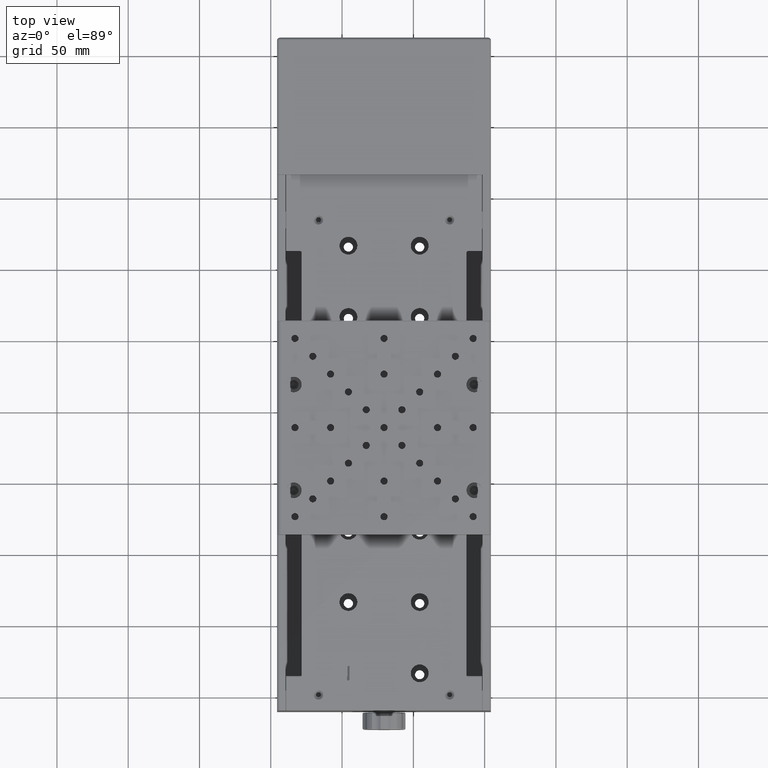
[diagram: clean part render]
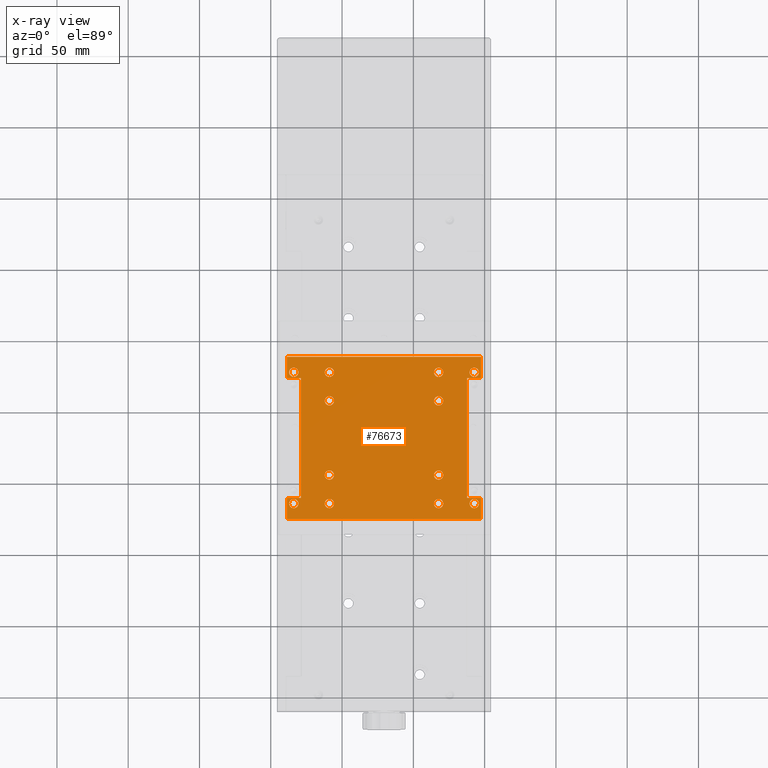
[diagram: x-ray — body ghosted, one internal face saturated and labeled with its STEP entity id]
A machine part, top view, then the same camera in x-ray: the body is ghosted and one INTERNAL B-rep face — a face not visible from any outside direction — is saturated and labeled: STEP entity #76673.
In plain terms, the highlighted planar face has unit normal (0, -0, 1).
Its self-contained STEP definition (entity closure, byte-faithful):
#167 = ORIENTED_EDGE ( 'NONE', *, *, #55372, .T. ) ;
#213 = VERTEX_POINT ( 'NONE', #16206 ) ;
#252 = VERTEX_POINT ( 'NONE', #23052 ) ;
#401 = CARTESIAN_POINT ( 'NONE',  ( -7.285432302880880506, 127.3629186807300187, 34.04665025355549801 ) ) ;
#531 = AXIS2_PLACEMENT_3D ( 'NONE', #10521, #58454, #8948 ) ;
#632 = FACE_BOUND ( 'NONE', #78102, .T. ) ;
#940 = VERTEX_POINT ( 'NONE', #60575 ) ;
#2062 = VERTEX_POINT ( 'NONE', #73159 ) ;
#2157 = CARTESIAN_POINT ( 'NONE',  ( -108.8854323028810001, 55.26291868073010249, 34.04665025355549801 ) ) ;
#2304 = DIRECTION ( 'NONE',  ( 0.000000000000000000, -2.758753472158164656E-17, 1.000000000000000000 ) ) ;
#2321 = CARTESIAN_POINT ( 'NONE',  ( -108.8854323028810001, 107.3629186807300044, 34.04665025355549801 ) ) ;
#2401 = EDGE_CURVE ( 'NONE', #65336, #32308, #16757, .T. ) ;
#3358 = EDGE_CURVE ( 'NONE', #76929, #69538, #41840, .T. ) ;
#3532 = EDGE_LOOP ( 'NONE', ( #24803, #51194 ) ) ;
#3933 = EDGE_CURVE ( 'NONE', #10815, #42988, #13474, .T. ) ;
#3978 = DIRECTION ( 'NONE',  ( 1.455344893050667910E-16, 1.000000000000000000, 2.758753472158164656E-17 ) ) ;
#5266 = DIRECTION ( 'NONE',  ( 0.000000000000000000, -2.758753472158164656E-17, 1.000000000000000000 ) ) ;
#5609 = CIRCLE ( 'NONE', #12022, 3.250000000000002665 ) ;
#5690 = ORIENTED_EDGE ( 'NONE', *, *, #47049, .F. ) ;
#5782 = ORIENTED_EDGE ( 'NONE', *, *, #75201, .F. ) ;
#6729 = CIRCLE ( 'NONE', #18254, 3.250000000000002665 ) ;
#6938 = EDGE_CURVE ( 'NONE', #56355, #9285, #22256, .T. ) ;
#7223 = DIRECTION ( 'NONE',  ( 1.000000000000000000, -3.885780586188049864E-16, -5.916456789157590292E-31 ) ) ;
#7253 = DIRECTION ( 'NONE',  ( 0.000000000000000000, -2.758753472158164656E-17, 1.000000000000000000 ) ) ;
#7432 = VERTEX_POINT ( 'NONE', #52752 ) ;
#8070 = ORIENTED_EDGE ( 'NONE', *, *, #25861, .F. ) ;
#8119 = DIRECTION ( 'NONE',  ( -1.000000000000000000, 0.000000000000000000, 0.000000000000000000 ) ) ;
#8162 = EDGE_CURVE ( 'NONE', #71764, #24796, #62534, .T. ) ;
#8298 = EDGE_CURVE ( 'NONE', #76227, #19019, #18805, .T. ) ;
#8705 = CARTESIAN_POINT ( 'NONE',  ( -108.8854323028810001, 35.26291868073004565, 34.04665025355549801 ) ) ;
#8820 = CARTESIAN_POINT ( 'NONE',  ( -2.485432302880834943, 138.4129186807300016, 34.04665025355549801 ) ) ;
#8938 = ORIENTED_EDGE ( 'NONE', *, *, #25370, .T. ) ;
#8948 = DIRECTION ( 'NONE',  ( -1.000000000000000000, 0.000000000000000000, 0.000000000000000000 ) ) ;
#9003 = FACE_BOUND ( 'NONE', #11049, .T. ) ;
#9192 = DIRECTION ( 'NONE',  ( -1.000000000000000000, 0.000000000000000000, 0.000000000000000000 ) ) ;
#9257 = VERTEX_POINT ( 'NONE', #64622 ) ;
#9285 = VERTEX_POINT ( 'NONE', #77106 ) ;
#9392 = FACE_BOUND ( 'NONE', #57454, .T. ) ;
#9806 = EDGE_CURVE ( 'NONE', #59726, #41888, #54941, .T. ) ;
#9887 = CIRCLE ( 'NONE', #54886, 3.250000000000002665 ) ;
#10147 = CARTESIAN_POINT ( 'NONE',  ( -138.6854323028809972, 138.2129186807302119, 34.04665025355549801 ) ) ;
#10220 = AXIS2_PLACEMENT_3D ( 'NONE', #43835, #7253, #37023 ) ;
#10236 = VERTEX_POINT ( 'NONE', #16927 ) ;
#10521 = CARTESIAN_POINT ( 'NONE',  ( -32.28543230288089916, 127.3629186807300187, 34.04665025355549801 ) ) ;
#10815 = VERTEX_POINT ( 'NONE', #20785 ) ;
#10972 = DIRECTION ( 'NONE',  ( -1.000000000000000000, 3.885780586188049864E-16, 5.916456789157590292E-31 ) ) ;
#11010 = AXIS2_PLACEMENT_3D ( 'NONE', #76204, #70174, #46009 ) ;
#11049 = EDGE_LOOP ( 'NONE', ( #33187, #63103 ) ) ;
#11208 = CARTESIAN_POINT ( 'NONE',  ( -138.6854323028809972, 123.4129186807300158, 34.04665025355549801 ) ) ;
#11642 = AXIS2_PLACEMENT_3D ( 'NONE', #47690, #29607, #23570 ) ;
#11878 = ORIENTED_EDGE ( 'NONE', *, *, #48046, .T. ) ;
#12022 = AXIS2_PLACEMENT_3D ( 'NONE', #2321, #33263, #21607 ) ;
#12156 = DIRECTION ( 'NONE',  ( -1.000000000000000000, 0.000000000000000000, 0.000000000000000000 ) ) ;
#12690 = CIRCLE ( 'NONE', #30730, 3.250000000000002665 ) ;
#13061 = FACE_BOUND ( 'NONE', #3532, .T. ) ;
#13066 = EDGE_CURVE ( 'NONE', #53208, #56555, #35850, .T. ) ;
#13474 = LINE ( 'NONE', #25577, #13529 ) ;
#13529 = VECTOR ( 'NONE', #43265, 1000.000000000000000 ) ;
#13931 = ORIENTED_EDGE ( 'NONE', *, *, #53601, .T. ) ;
#14491 = DIRECTION ( 'NONE',  ( -1.000000000000000000, 0.000000000000000000, 0.000000000000000000 ) ) ;
#14863 = VECTOR ( 'NONE', #10972, 1000.000000000000000 ) ;
#14879 = EDGE_CURVE ( 'NONE', #69538, #76929, #71749, .T. ) ;
#14897 = EDGE_CURVE ( 'NONE', #10236, #22226, #69175, .T. ) ;
#15103 = CARTESIAN_POINT ( 'NONE',  ( -137.1354323028809858, 127.3629186807300187, 34.04665025355549801 ) ) ;
#15245 = DIRECTION ( 'NONE',  ( 2.670562739619359873E-16, 1.000000000000000000, 2.758753472158164656E-17 ) ) ;
#15387 = CARTESIAN_POINT ( 'NONE',  ( -112.1354323028810001, 107.3629186807300044, 34.04665025355549801 ) ) ;
#16206 = CARTESIAN_POINT ( 'NONE',  ( -105.6354323028810001, 127.3629186807300187, 34.04665025355549801 ) ) ;
#16414 = CARTESIAN_POINT ( 'NONE',  ( -7.285432302880880506, 127.3629186807300187, 34.04665025355549801 ) ) ;
#16428 = EDGE_CURVE ( 'NONE', #25374, #66951, #9887, .T. ) ;
#16600 = EDGE_CURVE ( 'NONE', #24796, #71764, #51018, .T. ) ;
#16757 = CIRCLE ( 'NONE', #34731, 3.250000000000002665 ) ;
#16927 = CARTESIAN_POINT ( 'NONE',  ( -29.03543230288089916, 35.26291868073010249, 34.04665025355549801 ) ) ;
#17068 = CIRCLE ( 'NONE', #64626, 3.250000000000002665 ) ;
#17307 = DIRECTION ( 'NONE',  ( -1.000000000000000000, 3.885780586188049864E-16, 5.916456789157590292E-31 ) ) ;
#17313 = DIRECTION ( 'NONE',  ( -1.000000000000000000, 3.885780586188049864E-16, 5.916456789157590292E-31 ) ) ;
#17926 = DIRECTION ( 'NONE',  ( 0.000000000000000000, -2.758753472158164656E-17, 1.000000000000000000 ) ) ;
#18028 = EDGE_CURVE ( 'NONE', #22226, #10236, #17068, .T. ) ;
#18119 = CARTESIAN_POINT ( 'NONE',  ( -108.8854323028810001, 35.26291868073004565, 34.04665025355549801 ) ) ;
#18254 = AXIS2_PLACEMENT_3D ( 'NONE', #42723, #67290, #12156 ) ;
#18805 = CIRCLE ( 'NONE', #23930, 3.250000000000000444 ) ;
#19019 = VERTEX_POINT ( 'NONE', #43969 ) ;
#19673 = CARTESIAN_POINT ( 'NONE',  ( -2.485432302880834943, 138.2129186807300130, 34.04665025355549801 ) ) ;
#19921 = VERTEX_POINT ( 'NONE', #25616 ) ;
#20009 = DIRECTION ( 'NONE',  ( 0.000000000000000000, -2.758753472158164656E-17, 1.000000000000000000 ) ) ;
#20239 = AXIS2_PLACEMENT_3D ( 'NONE', #36738, #71768, #66541 ) ;
#20314 = CARTESIAN_POINT ( 'NONE',  ( -130.6354323028809858, 127.3629186807300187, 34.04665025355549801 ) ) ;
#20330 = EDGE_LOOP ( 'NONE', ( #52198, #45128 ) ) ;
#20568 = EDGE_CURVE ( 'NONE', #213, #9257, #34026, .T. ) ;
#20589 = CIRCLE ( 'NONE', #32129, 3.250000000000002665 ) ;
#20785 = CARTESIAN_POINT ( 'NONE',  ( -2.485432302880865141, 24.41291868072999804, 34.04665025355549801 ) ) ;
#21402 = CIRCLE ( 'NONE', #47040, 3.250000000000002665 ) ;
#21607 = DIRECTION ( 'NONE',  ( -1.000000000000000000, 0.000000000000000000, 0.000000000000000000 ) ) ;
#22226 = VERTEX_POINT ( 'NONE', #71626 ) ;
#22256 = LINE ( 'NONE', #60078, #14863 ) ;
#22771 = AXIS2_PLACEMENT_3D ( 'NONE', #18119, #20009, #62673 ) ;
#22987 = CARTESIAN_POINT ( 'NONE',  ( -12.28543230288091870, 24.21291868073010178, 34.04665025355549801 ) ) ;
#23034 = EDGE_LOOP ( 'NONE', ( #36891, #38421 ) ) ;
#23052 = CARTESIAN_POINT ( 'NONE',  ( -112.1354323028810001, 55.26291868073010249, 34.04665025355549801 ) ) ;
#23481 = ORIENTED_EDGE ( 'NONE', *, *, #6938, .T. ) ;
#23568 = EDGE_CURVE ( 'NONE', #7432, #79429, #20589, .T. ) ;
#23570 = DIRECTION ( 'NONE',  ( -1.000000000000000000, 0.000000000000000000, 0.000000000000000000 ) ) ;
#23930 = AXIS2_PLACEMENT_3D ( 'NONE', #47691, #17926, #42053 ) ;
#24048 = VERTEX_POINT ( 'NONE', #10147 ) ;
#24399 = EDGE_CURVE ( 'NONE', #32308, #65336, #52584, .T. ) ;
#24459 = DIRECTION ( 'NONE',  ( -1.000000000000000000, 0.000000000000000000, 0.000000000000000000 ) ) ;
#24509 = CARTESIAN_POINT ( 'NONE',  ( -108.8854323028810001, 55.26291868073010249, 34.04665025355549801 ) ) ;
#24796 = VERTEX_POINT ( 'NONE', #57090 ) ;
#24803 = ORIENTED_EDGE ( 'NONE', *, *, #78556, .F. ) ;
#24943 = AXIS2_PLACEMENT_3D ( 'NONE', #2157, #43967, #56871 ) ;
#25370 = EDGE_CURVE ( 'NONE', #33493, #24048, #79291, .T. ) ;
#25374 = VERTEX_POINT ( 'NONE', #36611 ) ;
#25541 = AXIS2_PLACEMENT_3D ( 'NONE', #401, #5266, #29786 ) ;
#25577 = CARTESIAN_POINT ( 'NONE',  ( -2.485432302880860256, 39.21291868073004849, 34.04665025355549801 ) ) ;
#25616 = CARTESIAN_POINT ( 'NONE',  ( -105.6354323028810001, 55.26291868073010249, 34.04665025355549801 ) ) ;
#25805 = CARTESIAN_POINT ( 'NONE',  ( -133.8854323028809858, 127.3629186807300187, 34.04665025355549801 ) ) ;
#25861 = EDGE_CURVE ( 'NONE', #2062, #74314, #12690, .T. ) ;
#25948 = FACE_BOUND ( 'NONE', #39839, .T. ) ;
#26906 = CIRCLE ( 'NONE', #10220, 3.250000000000000444 ) ;
#27793 = CARTESIAN_POINT ( 'NONE',  ( -12.28543230288089916, 39.21291868073004849, 34.04665025355549801 ) ) ;
#27835 = ORIENTED_EDGE ( 'NONE', *, *, #24399, .F. ) ;
#27865 = EDGE_CURVE ( 'NONE', #72102, #33493, #43170, .T. ) ;
#28472 = DIRECTION ( 'NONE',  ( -1.455344893050667910E-16, -1.000000000000000000, -2.758753472158164656E-17 ) ) ;
#28592 = VECTOR ( 'NONE', #3978, 1000.000000000000000 ) ;
#29519 = ORIENTED_EDGE ( 'NONE', *, *, #29922, .T. ) ;
#29599 = CARTESIAN_POINT ( 'NONE',  ( -4.035432302880875177, 127.3629186807300187, 34.04665025355549801 ) ) ;
#29607 = DIRECTION ( 'NONE',  ( 0.000000000000000000, -2.758753472158164656E-17, 1.000000000000000000 ) ) ;
#29786 = DIRECTION ( 'NONE',  ( -1.000000000000000000, 0.000000000000000000, 0.000000000000000000 ) ) ;
#29862 = CARTESIAN_POINT ( 'NONE',  ( -128.8854323028809858, 39.21291868073010534, 34.04665025355549801 ) ) ;
#29922 = EDGE_CURVE ( 'NONE', #42988, #56555, #43035, .T. ) ;
#30049 = VECTOR ( 'NONE', #39345, 1000.000000000000000 ) ;
#30584 = CARTESIAN_POINT ( 'NONE',  ( -32.28543230288089916, 35.26291868073010249, 34.04665025355549801 ) ) ;
#30730 = AXIS2_PLACEMENT_3D ( 'NONE', #69481, #2304, #61856 ) ;
#31180 = FACE_BOUND ( 'NONE', #60341, .T. ) ;
#31298 = CIRCLE ( 'NONE', #24943, 3.250000000000002665 ) ;
#31575 = EDGE_CURVE ( 'NONE', #56355, #73875, #34129, .T. ) ;
#31679 = CARTESIAN_POINT ( 'NONE',  ( -10.53543230288089916, 35.26291868073010249, 34.04665025355549801 ) ) ;
#32129 = AXIS2_PLACEMENT_3D ( 'NONE', #40816, #77054, #78264 ) ;
#32224 = CIRCLE ( 'NONE', #48937, 3.250000000000002665 ) ;
#32308 = VERTEX_POINT ( 'NONE', #20314 ) ;
#32384 = ORIENTED_EDGE ( 'NONE', *, *, #23568, .F. ) ;
#32529 = CARTESIAN_POINT ( 'NONE',  ( -138.6854323028809972, 123.4129186807300158, 34.04665025355549801 ) ) ;
#33153 = FACE_OUTER_BOUND ( 'NONE', #39297, .T. ) ;
#33187 = ORIENTED_EDGE ( 'NONE', *, *, #18028, .F. ) ;
#33263 = DIRECTION ( 'NONE',  ( 0.000000000000000000, -2.758753472158164656E-17, 1.000000000000000000 ) ) ;
#33469 = CARTESIAN_POINT ( 'NONE',  ( -146.8150681160723821, 123.4129186807300158, 34.04665025355549801 ) ) ;
#33493 = VERTEX_POINT ( 'NONE', #19673 ) ;
#33745 = CARTESIAN_POINT ( 'NONE',  ( -32.28543230288089916, 35.26291868073010249, 34.04665025355549801 ) ) ;
#34026 = CIRCLE ( 'NONE', #66152, 3.250000000000002665 ) ;
#34129 = LINE ( 'NONE', #58696, #28592 ) ;
#34170 = VECTOR ( 'NONE', #47900, 1000.000000000000000 ) ;
#34404 = CARTESIAN_POINT ( 'NONE',  ( -130.6354323028809858, 35.26291868073004565, 34.04665025355549801 ) ) ;
#34416 = VECTOR ( 'NONE', #17307, 1000.000000000000000 ) ;
#34591 = CARTESIAN_POINT ( 'NONE',  ( -2.485432302880830502, 123.4129186807300158, 34.04665025355549801 ) ) ;
#34731 = AXIS2_PLACEMENT_3D ( 'NONE', #40067, #45309, #39680 ) ;
#35150 = ORIENTED_EDGE ( 'NONE', *, *, #8298, .F. ) ;
#35162 = EDGE_CURVE ( 'NONE', #940, #61110, #45048, .T. ) ;
#35317 = VECTOR ( 'NONE', #7223, 1000.000000000000000 ) ;
#35850 = LINE ( 'NONE', #22987, #34170 ) ;
#36203 = LINE ( 'NONE', #62344, #35317 ) ;
#36340 = EDGE_CURVE ( 'NONE', #79429, #7432, #6729, .T. ) ;
#36611 = CARTESIAN_POINT ( 'NONE',  ( -105.6354323028810001, 107.3629186807300044, 34.04665025355549801 ) ) ;
#36684 = ORIENTED_EDGE ( 'NONE', *, *, #36340, .F. ) ;
#36738 = CARTESIAN_POINT ( 'NONE',  ( -133.8854323028809858, 35.26291868073004565, 34.04665025355549801 ) ) ;
#36891 = ORIENTED_EDGE ( 'NONE', *, *, #16600, .F. ) ;
#37023 = DIRECTION ( 'NONE',  ( -1.000000000000000000, 0.000000000000000000, 0.000000000000000000 ) ) ;
#37256 = ORIENTED_EDGE ( 'NONE', *, *, #2401, .F. ) ;
#37596 = FACE_BOUND ( 'NONE', #76718, .T. ) ;
#37670 = CARTESIAN_POINT ( 'NONE',  ( -128.8854323028809858, 123.4129186807300158, 34.04665025355549801 ) ) ;
#37736 = DIRECTION ( 'NONE',  ( 0.000000000000000000, -2.758753472158164656E-17, 1.000000000000000000 ) ) ;
#38319 = AXIS2_PLACEMENT_3D ( 'NONE', #30584, #49075, #43038 ) ;
#38342 = EDGE_CURVE ( 'NONE', #53208, #72102, #71950, .T. ) ;
#38421 = ORIENTED_EDGE ( 'NONE', *, *, #8162, .F. ) ;
#38653 = DIRECTION ( 'NONE',  ( 0.000000000000000000, -2.758753472158164656E-17, 1.000000000000000000 ) ) ;
#39297 = EDGE_LOOP ( 'NONE', ( #13931, #57631, #29519, #48661, #67556, #68708, #8938, #65262, #11878, #70954, #23481, #167 ) ) ;
#39345 = DIRECTION ( 'NONE',  ( -1.455344893050667910E-16, -1.000000000000000000, -2.758753472158164656E-17 ) ) ;
#39579 = PLANE ( 'NONE',  #11010 ) ;
#39680 = DIRECTION ( 'NONE',  ( -1.000000000000000000, 0.000000000000000000, 0.000000000000000000 ) ) ;
#39839 = EDGE_LOOP ( 'NONE', ( #77221, #77845 ) ) ;
#39857 = EDGE_CURVE ( 'NONE', #66951, #25374, #5609, .T. ) ;
#40067 = CARTESIAN_POINT ( 'NONE',  ( -133.8854323028809858, 127.3629186807300187, 34.04665025355549801 ) ) ;
#40332 = CARTESIAN_POINT ( 'NONE',  ( -137.1354323028809858, 35.26291868073004565, 34.04665025355549801 ) ) ;
#40524 = LINE ( 'NONE', #65074, #51644 ) ;
#40755 = FACE_BOUND ( 'NONE', #70571, .T. ) ;
#40816 = CARTESIAN_POINT ( 'NONE',  ( -32.28543230288089916, 55.26291868073010249, 34.04665025355549801 ) ) ;
#41118 = CARTESIAN_POINT ( 'NONE',  ( -108.8854323028810001, 127.3629186807300187, 34.04665025355549801 ) ) ;
#41741 = CARTESIAN_POINT ( 'NONE',  ( -108.8854323028810001, 127.3629186807300187, 34.04665025355549801 ) ) ;
#41840 = CIRCLE ( 'NONE', #45497, 3.250000000000000444 ) ;
#41888 = VERTEX_POINT ( 'NONE', #34404 ) ;
#42053 = DIRECTION ( 'NONE',  ( -1.000000000000000000, 0.000000000000000000, 0.000000000000000000 ) ) ;
#42723 = CARTESIAN_POINT ( 'NONE',  ( -32.28543230288089916, 55.26291868073010249, 34.04665025355549801 ) ) ;
#42931 = DIRECTION ( 'NONE',  ( 0.000000000000000000, -2.758753472158164656E-17, 1.000000000000000000 ) ) ;
#42988 = VERTEX_POINT ( 'NONE', #63111 ) ;
#43035 = LINE ( 'NONE', #53935, #34416 ) ;
#43038 = DIRECTION ( 'NONE',  ( -1.000000000000000000, 0.000000000000000000, 0.000000000000000000 ) ) ;
#43170 = LINE ( 'NONE', #8820, #78514 ) ;
#43265 = DIRECTION ( 'NONE',  ( 2.670562739619359873E-16, 1.000000000000000000, 2.758753472158164656E-17 ) ) ;
#43719 = AXIS2_PLACEMENT_3D ( 'NONE', #41741, #75016, #78786 ) ;
#43795 = LINE ( 'NONE', #32529, #30049 ) ;
#43835 = CARTESIAN_POINT ( 'NONE',  ( -7.285432302880909816, 35.26291868073010249, 34.04665025355549801 ) ) ;
#43967 = DIRECTION ( 'NONE',  ( 0.000000000000000000, -2.758753472158164656E-17, 1.000000000000000000 ) ) ;
#43969 = CARTESIAN_POINT ( 'NONE',  ( -4.035432302880909816, 35.26291868073010249, 34.04665025355549801 ) ) ;
#44431 = FACE_BOUND ( 'NONE', #75286, .T. ) ;
#45048 = CIRCLE ( 'NONE', #11642, 3.250000000000002665 ) ;
#45070 = VECTOR ( 'NONE', #57251, 1000.000000000000000 ) ;
#45128 = ORIENTED_EDGE ( 'NONE', *, *, #20568, .F. ) ;
#45309 = DIRECTION ( 'NONE',  ( 0.000000000000000000, -2.758753472158164656E-17, 1.000000000000000000 ) ) ;
#45497 = AXIS2_PLACEMENT_3D ( 'NONE', #16414, #63944, #9192 ) ;
#46009 = DIRECTION ( 'NONE',  ( 0.000000000000000000, -1.000000000000000000, -2.758753472158164656E-17 ) ) ;
#46118 = EDGE_CURVE ( 'NONE', #9257, #213, #66830, .T. ) ;
#46509 = ORIENTED_EDGE ( 'NONE', *, *, #39857, .F. ) ;
#47040 = AXIS2_PLACEMENT_3D ( 'NONE', #67897, #42931, #24459 ) ;
#47049 = EDGE_CURVE ( 'NONE', #19019, #76227, #26906, .T. ) ;
#47690 = CARTESIAN_POINT ( 'NONE',  ( -32.28543230288089916, 127.3629186807300187, 34.04665025355549801 ) ) ;
#47691 = CARTESIAN_POINT ( 'NONE',  ( -7.285432302880909816, 35.26291868073010249, 34.04665025355549801 ) ) ;
#47900 = DIRECTION ( 'NONE',  ( -2.670562739619359873E-16, -1.000000000000000000, -2.758753472158164656E-17 ) ) ;
#48046 = EDGE_CURVE ( 'NONE', #63351, #73875, #64449, .T. ) ;
#48661 = ORIENTED_EDGE ( 'NONE', *, *, #13066, .F. ) ;
#48937 = AXIS2_PLACEMENT_3D ( 'NONE', #24509, #37736, #67555 ) ;
#49075 = DIRECTION ( 'NONE',  ( 0.000000000000000000, -2.758753472158164656E-17, 1.000000000000000000 ) ) ;
#49195 = CARTESIAN_POINT ( 'NONE',  ( -10.53543230288087962, 127.3629186807300187, 34.04665025355549801 ) ) ;
#51018 = CIRCLE ( 'NONE', #22771, 3.250000000000002665 ) ;
#51026 = CARTESIAN_POINT ( 'NONE',  ( -29.03543230288089916, 55.26291868073010249, 34.04665025355549801 ) ) ;
#51168 = CARTESIAN_POINT ( 'NONE',  ( -108.8854323028810001, 107.3629186807300044, 34.04665025355549801 ) ) ;
#51194 = ORIENTED_EDGE ( 'NONE', *, *, #70153, .F. ) ;
#51644 = VECTOR ( 'NONE', #28472, 1000.000000000000000 ) ;
#51744 = CARTESIAN_POINT ( 'NONE',  ( -133.8854323028809858, 35.26291868073004565, 34.04665025355549801 ) ) ;
#52154 = DIRECTION ( 'NONE',  ( 0.000000000000000000, -2.758753472158164656E-17, 1.000000000000000000 ) ) ;
#52198 = ORIENTED_EDGE ( 'NONE', *, *, #46118, .F. ) ;
#52228 = AXIS2_PLACEMENT_3D ( 'NONE', #8705, #77093, #59377 ) ;
#52517 = EDGE_CURVE ( 'NONE', #24048, #63351, #43795, .T. ) ;
#52584 = CIRCLE ( 'NONE', #55173, 3.250000000000002665 ) ;
#52752 = CARTESIAN_POINT ( 'NONE',  ( -35.53543230288089916, 55.26291868073010249, 34.04665025355549801 ) ) ;
#52761 = DIRECTION ( 'NONE',  ( 0.000000000000000000, -2.758753472158164656E-17, 1.000000000000000000 ) ) ;
#53208 = VERTEX_POINT ( 'NONE', #78570 ) ;
#53344 = DIRECTION ( 'NONE',  ( -1.000000000000000000, 0.000000000000000000, 0.000000000000000000 ) ) ;
#53562 = ORIENTED_EDGE ( 'NONE', *, *, #35162, .F. ) ;
#53601 = EDGE_CURVE ( 'NONE', #58437, #10815, #36203, .T. ) ;
#53935 = CARTESIAN_POINT ( 'NONE',  ( 4.114523684553460292, 39.21291868073004849, 34.04665025355549801 ) ) ;
#53977 = EDGE_CURVE ( 'NONE', #74314, #2062, #21402, .T. ) ;
#54606 = VECTOR ( 'NONE', #59477, 1000.000000000000000 ) ;
#54886 = AXIS2_PLACEMENT_3D ( 'NONE', #51168, #52761, #8119 ) ;
#54941 = CIRCLE ( 'NONE', #20239, 3.250000000000002665 ) ;
#55173 = AXIS2_PLACEMENT_3D ( 'NONE', #25805, #38653, #14491 ) ;
#55372 = EDGE_CURVE ( 'NONE', #9285, #58437, #40524, .T. ) ;
#55479 = EDGE_LOOP ( 'NONE', ( #58671, #5782 ) ) ;
#56355 = VERTEX_POINT ( 'NONE', #29862 ) ;
#56555 = VERTEX_POINT ( 'NONE', #27793 ) ;
#56871 = DIRECTION ( 'NONE',  ( -1.000000000000000000, 0.000000000000000000, 0.000000000000000000 ) ) ;
#57090 = CARTESIAN_POINT ( 'NONE',  ( -112.1354323028810001, 35.26291868073004565, 34.04665025355549801 ) ) ;
#57251 = DIRECTION ( 'NONE',  ( 1.000000000000000000, -3.885780586188049864E-16, -5.916456789157590292E-31 ) ) ;
#57454 = EDGE_LOOP ( 'NONE', ( #35150, #5690 ) ) ;
#57631 = ORIENTED_EDGE ( 'NONE', *, *, #3933, .T. ) ;
#58320 = DIRECTION ( 'NONE',  ( -1.000000000000000000, 0.000000000000000000, 0.000000000000000000 ) ) ;
#58437 = VERTEX_POINT ( 'NONE', #60331 ) ;
#58454 = DIRECTION ( 'NONE',  ( 0.000000000000000000, -2.758753472158164656E-17, 1.000000000000000000 ) ) ;
#58671 = ORIENTED_EDGE ( 'NONE', *, *, #9806, .F. ) ;
#58696 = CARTESIAN_POINT ( 'NONE',  ( -128.8854323028809858, 24.21291868073010178, 34.04665025355549801 ) ) ;
#58766 = CARTESIAN_POINT ( 'NONE',  ( -29.03543230288089916, 107.3629186807300044, 34.04665025355549801 ) ) ;
#59377 = DIRECTION ( 'NONE',  ( -1.000000000000000000, 0.000000000000000000, 0.000000000000000000 ) ) ;
#59477 = DIRECTION ( 'NONE',  ( 1.000000000000000000, -3.885780586188049864E-16, -5.916456789157590292E-31 ) ) ;
#59726 = VERTEX_POINT ( 'NONE', #40332 ) ;
#60078 = CARTESIAN_POINT ( 'NONE',  ( 4.114523684553460292, 39.21291868073004849, 34.04665025355549801 ) ) ;
#60284 = VECTOR ( 'NONE', #17313, 1000.000000000000000 ) ;
#60331 = CARTESIAN_POINT ( 'NONE',  ( -138.6854323028809972, 24.41291868073005134, 34.04665025355549801 ) ) ;
#60341 = EDGE_LOOP ( 'NONE', ( #32384, #36684 ) ) ;
#60375 = CARTESIAN_POINT ( 'NONE',  ( -138.8854323028810143, 138.2129186807302119, 34.04665025355549801 ) ) ;
#60575 = CARTESIAN_POINT ( 'NONE',  ( -29.03543230288089916, 127.3629186807300187, 34.04665025355549801 ) ) ;
#60956 = AXIS2_PLACEMENT_3D ( 'NONE', #51744, #52154, #53344 ) ;
#61110 = VERTEX_POINT ( 'NONE', #63635 ) ;
#61856 = DIRECTION ( 'NONE',  ( -1.000000000000000000, 0.000000000000000000, 0.000000000000000000 ) ) ;
#62344 = CARTESIAN_POINT ( 'NONE',  ( -2.285432302880915145, 24.41291868072999804, 34.04665025355549801 ) ) ;
#62534 = CIRCLE ( 'NONE', #52228, 3.250000000000002665 ) ;
#62673 = DIRECTION ( 'NONE',  ( -1.000000000000000000, 0.000000000000000000, 0.000000000000000000 ) ) ;
#63103 = ORIENTED_EDGE ( 'NONE', *, *, #14897, .F. ) ;
#63111 = CARTESIAN_POINT ( 'NONE',  ( -2.485432302880860256, 39.21291868073004849, 34.04665025355549801 ) ) ;
#63351 = VERTEX_POINT ( 'NONE', #11208 ) ;
#63635 = CARTESIAN_POINT ( 'NONE',  ( -35.53543230288089916, 127.3629186807300187, 34.04665025355549801 ) ) ;
#63944 = DIRECTION ( 'NONE',  ( 0.000000000000000000, -2.758753472158164656E-17, 1.000000000000000000 ) ) ;
#64158 = ORIENTED_EDGE ( 'NONE', *, *, #78694, .F. ) ;
#64449 = LINE ( 'NONE', #33469, #45070 ) ;
#64622 = CARTESIAN_POINT ( 'NONE',  ( -112.1354323028810001, 127.3629186807300187, 34.04665025355549801 ) ) ;
#64626 = AXIS2_PLACEMENT_3D ( 'NONE', #33745, #76019, #58320 ) ;
#65074 = CARTESIAN_POINT ( 'NONE',  ( -138.6854323028809972, 24.21291868073015152, 34.04665025355549801 ) ) ;
#65262 = ORIENTED_EDGE ( 'NONE', *, *, #52517, .T. ) ;
#65336 = VERTEX_POINT ( 'NONE', #15103 ) ;
#65515 = CARTESIAN_POINT ( 'NONE',  ( -146.8150681160723821, 123.4129186807300158, 34.04665025355549801 ) ) ;
#66108 = CIRCLE ( 'NONE', #60956, 3.250000000000002665 ) ;
#66152 = AXIS2_PLACEMENT_3D ( 'NONE', #41118, #77761, #72925 ) ;
#66541 = DIRECTION ( 'NONE',  ( -1.000000000000000000, 0.000000000000000000, 0.000000000000000000 ) ) ;
#66830 = CIRCLE ( 'NONE', #43719, 3.250000000000002665 ) ;
#66951 = VERTEX_POINT ( 'NONE', #15387 ) ;
#67290 = DIRECTION ( 'NONE',  ( 0.000000000000000000, -2.758753472158164656E-17, 1.000000000000000000 ) ) ;
#67395 = CIRCLE ( 'NONE', #531, 3.250000000000002665 ) ;
#67555 = DIRECTION ( 'NONE',  ( -1.000000000000000000, 0.000000000000000000, 0.000000000000000000 ) ) ;
#67556 = ORIENTED_EDGE ( 'NONE', *, *, #38342, .T. ) ;
#67897 = CARTESIAN_POINT ( 'NONE',  ( -32.28543230288089916, 107.3629186807300044, 34.04665025355549801 ) ) ;
#68708 = ORIENTED_EDGE ( 'NONE', *, *, #27865, .T. ) ;
#69175 = CIRCLE ( 'NONE', #38319, 3.250000000000002665 ) ;
#69481 = CARTESIAN_POINT ( 'NONE',  ( -32.28543230288089916, 107.3629186807300044, 34.04665025355549801 ) ) ;
#69538 = VERTEX_POINT ( 'NONE', #29599 ) ;
#70153 = EDGE_CURVE ( 'NONE', #19921, #252, #32224, .T. ) ;
#70174 = DIRECTION ( 'NONE',  ( 5.809257682315679924E-31, -2.758753472158164656E-17, 1.000000000000000000 ) ) ;
#70571 = EDGE_LOOP ( 'NONE', ( #37256, #27835 ) ) ;
#70950 = FACE_BOUND ( 'NONE', #20330, .T. ) ;
#70954 = ORIENTED_EDGE ( 'NONE', *, *, #31575, .F. ) ;
#71363 = FACE_BOUND ( 'NONE', #23034, .T. ) ;
#71626 = CARTESIAN_POINT ( 'NONE',  ( -35.53543230288089916, 35.26291868073010249, 34.04665025355549801 ) ) ;
#71749 = CIRCLE ( 'NONE', #25541, 3.250000000000000444 ) ;
#71764 = VERTEX_POINT ( 'NONE', #73910 ) ;
#71768 = DIRECTION ( 'NONE',  ( 0.000000000000000000, -2.758753472158164656E-17, 1.000000000000000000 ) ) ;
#71950 = LINE ( 'NONE', #65515, #54606 ) ;
#72102 = VERTEX_POINT ( 'NONE', #34591 ) ;
#72925 = DIRECTION ( 'NONE',  ( -1.000000000000000000, 0.000000000000000000, 0.000000000000000000 ) ) ;
#73159 = CARTESIAN_POINT ( 'NONE',  ( -35.53543230288089916, 107.3629186807300044, 34.04665025355549801 ) ) ;
#73875 = VERTEX_POINT ( 'NONE', #37670 ) ;
#73910 = CARTESIAN_POINT ( 'NONE',  ( -105.6354323028810001, 35.26291868073004565, 34.04665025355549801 ) ) ;
#74314 = VERTEX_POINT ( 'NONE', #58766 ) ;
#75016 = DIRECTION ( 'NONE',  ( 0.000000000000000000, -2.758753472158164656E-17, 1.000000000000000000 ) ) ;
#75201 = EDGE_CURVE ( 'NONE', #41888, #59726, #66108, .T. ) ;
#75286 = EDGE_LOOP ( 'NONE', ( #8070, #77602 ) ) ;
#76019 = DIRECTION ( 'NONE',  ( 0.000000000000000000, -2.758753472158164656E-17, 1.000000000000000000 ) ) ;
#76204 = CARTESIAN_POINT ( 'NONE',  ( -0.2854323028809150342, 24.21291868073005205, 34.04665025355549801 ) ) ;
#76227 = VERTEX_POINT ( 'NONE', #31679 ) ;
#76673 = ADVANCED_FACE ( 'NONE', ( #25948, #44431, #31180, #632, #13061, #37596, #9392, #9003, #70950, #40755, #71363, #76999, #33153 ), #39579, .T. ) ;
#76718 = EDGE_LOOP ( 'NONE', ( #64158, #53562 ) ) ;
#76929 = VERTEX_POINT ( 'NONE', #49195 ) ;
#76999 = FACE_BOUND ( 'NONE', #55479, .T. ) ;
#77054 = DIRECTION ( 'NONE',  ( 0.000000000000000000, -2.758753472158164656E-17, 1.000000000000000000 ) ) ;
#77093 = DIRECTION ( 'NONE',  ( 0.000000000000000000, -2.758753472158164656E-17, 1.000000000000000000 ) ) ;
#77106 = CARTESIAN_POINT ( 'NONE',  ( -138.6854323028809972, 39.21291868073015507, 34.04665025355549801 ) ) ;
#77221 = ORIENTED_EDGE ( 'NONE', *, *, #3358, .F. ) ;
#77602 = ORIENTED_EDGE ( 'NONE', *, *, #53977, .F. ) ;
#77761 = DIRECTION ( 'NONE',  ( 0.000000000000000000, -2.758753472158164656E-17, 1.000000000000000000 ) ) ;
#77845 = ORIENTED_EDGE ( 'NONE', *, *, #14879, .F. ) ;
#78102 = EDGE_LOOP ( 'NONE', ( #46509, #78771 ) ) ;
#78264 = DIRECTION ( 'NONE',  ( -1.000000000000000000, 0.000000000000000000, 0.000000000000000000 ) ) ;
#78514 = VECTOR ( 'NONE', #15245, 1000.000000000000000 ) ;
#78556 = EDGE_CURVE ( 'NONE', #252, #19921, #31298, .T. ) ;
#78570 = CARTESIAN_POINT ( 'NONE',  ( -12.28543230288089916, 123.4129186807300158, 34.04665025355549801 ) ) ;
#78694 = EDGE_CURVE ( 'NONE', #61110, #940, #67395, .T. ) ;
#78771 = ORIENTED_EDGE ( 'NONE', *, *, #16428, .F. ) ;
#78786 = DIRECTION ( 'NONE',  ( -1.000000000000000000, 0.000000000000000000, 0.000000000000000000 ) ) ;
#79291 = LINE ( 'NONE', #60375, #60284 ) ;
#79429 = VERTEX_POINT ( 'NONE', #51026 ) ;